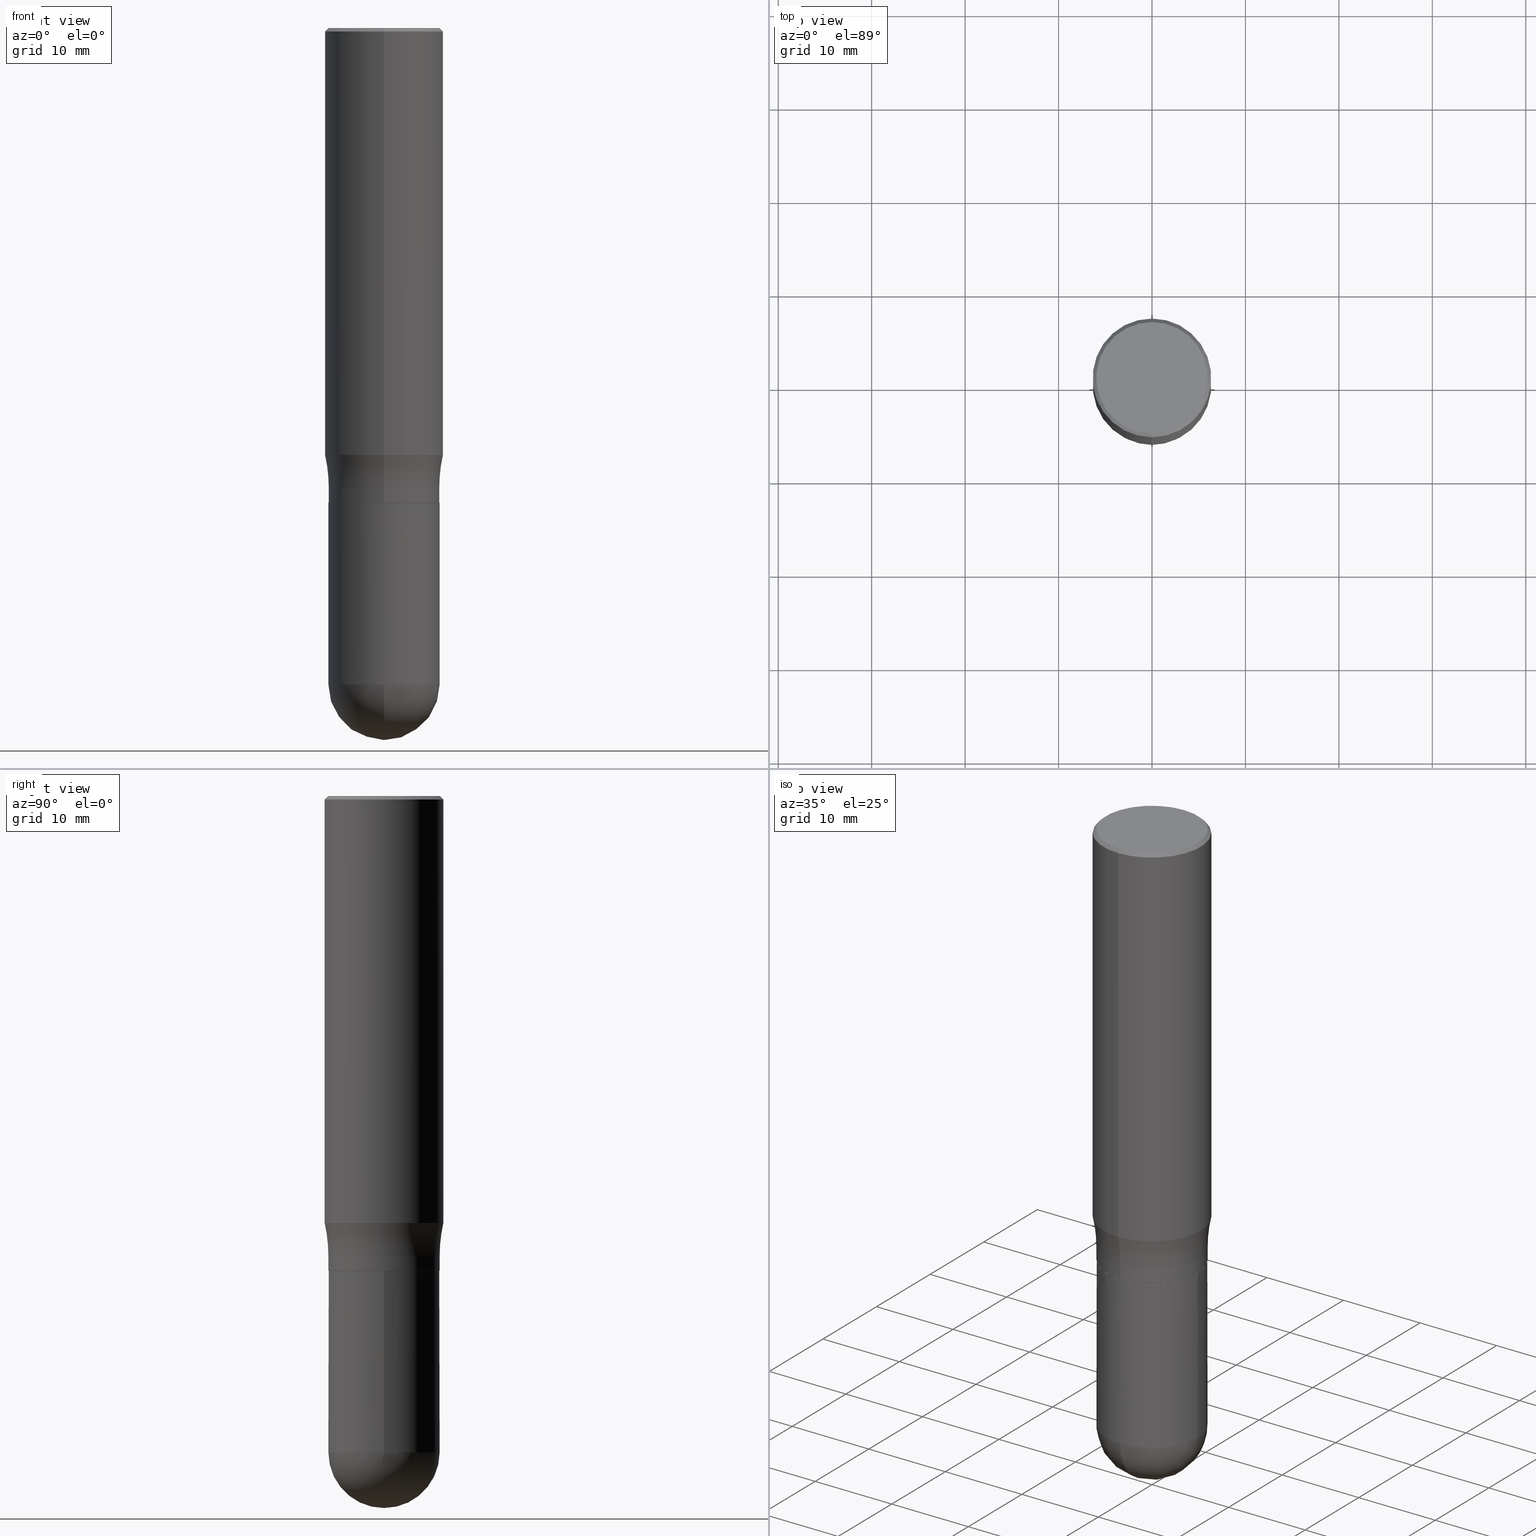
[diagram: canonical four-view strip — front | top / right | iso, engineering-drawing reading convention]
A machine part, canonical four-view strip (front | top / right | iso — engineering-drawing reading convention). The complete STEP part file that produces these views, byte-faithful:
ISO-10303-21;
HEADER;
FILE_DESCRIPTION (( 'STEP AP203' ),
    '1' );
FILE_NAME ('36542.STEP',
    '2024-03-01T12:58:55',
    ( '' ),
    ( '' ),
    'SwSTEP 2.0',
    'SolidWorks 2023',
    '' );
FILE_SCHEMA (( 'CONFIG_CONTROL_DESIGN' ));
ENDSEC;

DATA;
#1 = CARTESIAN_POINT ( 'NONE',  ( 1.640996229256272519E-15, 0.2349999999999999867, -8.360418196477502759E-16 ) ) ;
#2 = ORIENTED_EDGE ( 'NONE', *, *, #437, .F. ) ;
#3 = CIRCLE ( 'NONE', #300, 0.6250000000000001110 ) ;
#4 = PERSON_AND_ORGANIZATION ( #457, #157 ) ;
#5 = DATE_AND_TIME ( #351, #508 ) ;
#6 = LOCAL_TIME ( 7, 58, 55.00000000000000000, #410 ) ;
#7 = DIRECTION ( 'NONE',  ( -2.444769702225320447E-29, 3.492482495504128512E-15, 1.000000000000000000 ) ) ;
#8 = AXIS2_PLACEMENT_3D ( 'NONE', #151, #267, #24 ) ;
#9 = APPROVAL ( #449, 'UNSPECIFIED' ) ;
#10 = DIRECTION ( 'NONE',  ( 1.000000000000000000, -7.105427357601001070E-15, 4.926327769175085437E-29 ) ) ;
#11 = PERSON_AND_ORGANIZATION ( #457, #157 ) ;
#12 = AXIS2_PLACEMENT_3D ( 'NONE', #495, #224, #463 ) ;
#13 = CARTESIAN_POINT ( 'NONE',  ( 7.485118737272847550E-46, -1.069288699990853454E-31, -3.061686640856034159E-17 ) ) ;
#14 = ORIENTED_EDGE ( 'NONE', *, *, #393, .T. ) ;
#15 = PERSON_AND_ORGANIZATION ( #457, #157 ) ;
#16 = ORIENTED_EDGE ( 'NONE', *, *, #371, .T. ) ;
#17 = AXIS2_PLACEMENT_3D ( 'NONE', #490, #372, #484 ) ;
#18 = APPLICATION_PROTOCOL_DEFINITION ( 'international standard', 'config_control_design', 1994, #418 ) ;
#19 = VERTEX_POINT ( 'NONE', #179 ) ;
#20 = AXIS2_PLACEMENT_3D ( 'NONE', #334, #86, #59 ) ;
#21 = CIRCLE ( 'NONE', #277, 0.2349999999999999867 ) ;
#22 = APPROVAL ( #82, 'UNSPECIFIED' ) ;
#23 = CARTESIAN_POINT ( 'NONE',  ( 1.776356839400294641E-15, 0.2499999999999936717, -1.799231703909000002 ) ) ;
#24 = DIRECTION ( 'NONE',  ( -6.982962677686265922E-15, -1.000000000000000000, 3.503866601536036131E-15 ) ) ;
#25 = CARTESIAN_POINT ( 'NONE',  ( -1.633314970310768797E-15, -0.2339000000000070190, -1.999999999999999778 ) ) ;
#26 = VERTEX_POINT ( 'NONE', #169 ) ;
#27 = DIRECTION ( 'NONE',  ( 1.000000000000000000, -6.982962677686269077E-15, 0.000000000000000000 ) ) ;
#28 = CIRCLE ( 'NONE', #130, 0.6250000000000001110 ) ;
#29 = FACE_OUTER_BOUND ( 'NONE', #491, .T. ) ;
#30 = EDGE_CURVE ( 'NONE', #247, #322, #3, .T. ) ;
#31 = CC_DESIGN_SECURITY_CLASSIFICATION ( #344, ( #454 ) ) ;
#32 = DIRECTION ( 'NONE',  ( -2.444769702225320447E-29, 3.492482495504128512E-15, 1.000000000000000000 ) ) ;
#33 = ORIENTED_EDGE ( 'NONE', *, *, #265, .T. ) ;
#34 = FACE_OUTER_BOUND ( 'NONE', #319, .T. ) ;
#35 = ORIENTED_EDGE ( 'NONE', *, *, #58, .T. ) ;
#36 = CARTESIAN_POINT ( 'NONE',  ( 0.000000000000000000, 0.000000000000000000, 0.000000000000000000 ) ) ;
#37 = ORIENTED_EDGE ( 'NONE', *, *, #376, .F. ) ;
#38 = EDGE_CURVE ( 'NONE', #290, #60, #314, .T. ) ;
#39 = CIRCLE ( 'NONE', #8, 0.2339000000000000246 ) ;
#40 = CARTESIAN_POINT ( 'NONE',  ( 6.763188530385614545E-29, -9.656040790704603926E-15, -2.765600000000000058 ) ) ;
#41 = ORIENTED_EDGE ( 'NONE', *, *, #38, .F. ) ;
#42 = DIRECTION ( 'NONE',  ( 6.982962677686265922E-15, 1.000000000000000000, -2.330928322239131685E-15 ) ) ;
#43 = ORIENTED_EDGE ( 'NONE', *, *, #187, .T. ) ;
#44 = DIRECTION ( 'NONE',  ( -2.445468806185136877E-29, 3.491481338843145188E-15, 1.000000000000000000 ) ) ;
#45 = ORIENTED_EDGE ( 'NONE', *, *, #83, .T. ) ;
#46 = ADVANCED_FACE ( 'NONE', ( #241 ), #361, .T. ) ;
#47 = APPLICATION_CONTEXT ( 'configuration controlled 3d designs of mechanical parts and assemblies' ) ;
#48 = AXIS2_PLACEMENT_3D ( 'NONE', #13, #137, #52 ) ;
#49 = CARTESIAN_POINT ( 'NONE',  ( 0.000000000000000000, 0.000000000000000000, 0.000000000000000000 ) ) ;
#50 = ORIENTED_EDGE ( 'NONE', *, *, #336, .F. ) ;
#51 = CALENDAR_DATE ( 2024, 1, 3 ) ;
#52 = DIRECTION ( 'NONE',  ( -6.982962677686266711E-15, -1.000000000000000000, 3.492482495504128906E-15 ) ) ;
#53 = CARTESIAN_POINT ( 'NONE',  ( 3.667154553337987905E-31, -5.238723743256204132E-17, -0.01500000000000003067 ) ) ;
#54 = COORDINATED_UNIVERSAL_TIME_OFFSET ( 5, 0, .BEHIND. ) ;
#55 = ORIENTED_EDGE ( 'NONE', *, *, #496, .T. ) ;
#56 = DIRECTION ( 'NONE',  ( -6.982962677686265133E-15, -1.000000000000000000, 3.496392483358695161E-15 ) ) ;
#57 = COORDINATED_UNIVERSAL_TIME_OFFSET ( 5, 0, .BEHIND. ) ;
#58 = EDGE_CURVE ( 'NONE', #290, #406, #161, .T. ) ;
#59 = DIRECTION ( 'NONE',  ( 1.000000000000000000, 0.000000000000000000, 0.000000000000000000 ) ) ;
#60 = VERTEX_POINT ( 'NONE', #438 ) ;
#61 = CONICAL_SURFACE ( 'NONE', #453, 0.2500000000000000000, 0.7853981633974485010 ) ;
#62 = MANIFOLD_SOLID_BREP ( 'Body-Move/Copy2[2]', #231 ) ;
#63 =( NAMED_UNIT ( * ) SI_UNIT ( $, .STERADIAN. ) SOLID_ANGLE_UNIT ( ) );
#64 = ORIENTED_EDGE ( 'NONE', *, *, #298, .T. ) ;
#65 = VERTEX_POINT ( 'NONE', #365 ) ;
#66 = CC_DESIGN_PERSON_AND_ORGANIZATION_ASSIGNMENT ( #4, #135, ( #454 ) ) ;
#67 = CARTESIAN_POINT ( 'NONE',  ( 1.661959458942923419E-15, 0.2338999999999930302, -2.000000000000001332 ) ) ;
#68 = ORIENTED_EDGE ( 'NONE', *, *, #362, .F. ) ;
#69 = LOCAL_TIME ( 7, 58, 55.00000000000000000, #459 ) ;
#70 = CARTESIAN_POINT ( 'NONE',  ( 4.737963682912671420E-29, -6.768431076287002133E-15, -1.938000000000000167 ) ) ;
#71 = CARTESIAN_POINT ( 'NONE',  ( -1.636806451649615157E-15, -0.2344000000000069917, -1.937999999999999279 ) ) ;
#72 = CARTESIAN_POINT ( 'NONE',  ( 1.745740669421566875E-15, 0.2499999999999999167, -0.01500000000000090324 ) ) ;
#73 = CARTESIAN_POINT ( 'NONE',  ( 0.000000000000000000, 0.000000000000000000, 0.000000000000000000 ) ) ;
#74 = CARTESIAN_POINT ( 'NONE',  ( -1.633314970310768797E-15, -0.2339000000000070190, -1.999999999999999778 ) ) ;
#75 = EDGE_CURVE ( 'NONE', #355, #238, #441, .T. ) ;
#76 = DIRECTION ( 'NONE',  ( -6.982962677686265922E-15, -1.000000000000000000, 3.503866601536036131E-15 ) ) ;
#77 = CARTESIAN_POINT ( 'NONE',  ( 6.764522589796733920E-29, -9.654130341697934439E-15, -2.765600000000000058 ) ) ;
#78 = MANIFOLD_SOLID_BREP ( 'Body-Move/Copy2[1]', #88 ) ;
#79 = CIRCLE ( 'NONE', #398, 0.2339000000000000246 ) ;
#80 = CARTESIAN_POINT ( 'NONE',  ( -1.715124499442882299E-15, -0.2500000000000000555, -0.01499999999999915637 ) ) ;
#81 = ORIENTED_EDGE ( 'NONE', *, *, #75, .T. ) ;
#82 = APPROVAL_STATUS ( 'not_yet_approved' ) ;
#83 = EDGE_CURVE ( 'NONE', #255, #322, #485, .T. ) ;
#84 = CARTESIAN_POINT ( 'NONE',  ( 7.485118737272847550E-46, -1.069288699990853454E-31, -3.061686640856034159E-17 ) ) ;
#85 = ORIENTED_EDGE ( 'NONE', *, *, #376, .T. ) ;
#86 = DIRECTION ( 'NONE',  ( 0.000000000000000000, 0.000000000000000000, 1.000000000000000000 ) ) ;
#87 = ORIENTED_EDGE ( 'NONE', *, *, #30, .T. ) ;
#88 = CLOSED_SHELL ( 'NONE', ( #503, #353, #475, #46, #400 ) ) ;
#89 = CIRCLE ( 'NONE', #266, 0.2500000000000000000 ) ;
#90 = CIRCLE ( 'NONE', #186, 0.2344000000000000250 ) ;
#91 = CALENDAR_DATE ( 2024, 1, 3 ) ;
#92 = CC_DESIGN_APPROVAL ( #162, ( #454 ) ) ;
#93 = FACE_OUTER_BOUND ( 'NONE', #313, .T. ) ;
#94 = DIRECTION ( 'NONE',  ( 1.000000000000000000, -6.982962677686265922E-15, 4.883557194083112340E-29 ) ) ;
#95 = CIRCLE ( 'NONE', #331, 0.2500000000000000000 ) ;
#96 = CARTESIAN_POINT ( 'NONE',  ( 3.667154553337987905E-31, -5.238723743256204132E-17, -0.01500000000000003067 ) ) ;
#97 = CARTESIAN_POINT ( 'NONE',  ( -1.663670764459595899E-15, -0.2349999999999999867, 7.901165200349098005E-16 ) ) ;
#98 = EDGE_CURVE ( 'NONE', #65, #249, #28, .T. ) ;
#99 = CARTESIAN_POINT ( 'NONE',  ( 3.667154553337987905E-31, -5.238723743256204132E-17, -0.01500000000000003067 ) ) ;
#100 = EDGE_LOOP ( 'NONE', ( #499, #64, #14, #16, #472 ) ) ;
#101 = FACE_OUTER_BOUND ( 'NONE', #196, .T. ) ;
#102 = AXIS2_PLACEMENT_3D ( 'NONE', #487, #452, #147 ) ;
#103 = PRODUCT_DEFINITION ( 'UNKNOWN', '', #454, #150 ) ;
#104 = DIRECTION ( 'NONE',  ( 2.444769702225320447E-29, -3.492482495504128512E-15, -1.000000000000000000 ) ) ;
#105 = CARTESIAN_POINT ( 'NONE',  ( -1.715124499442882299E-15, -0.2500000000000000555, -0.01499999999999915637 ) ) ;
#106 = ORIENTED_EDGE ( 'NONE', *, *, #417, .T. ) ;
#107 = FACE_OUTER_BOUND ( 'NONE', #402, .T. ) ;
#108 = DIRECTION ( 'NONE',  ( -2.444769702225320447E-29, 3.492482495504128512E-15, 1.000000000000000000 ) ) ;
#109 = CALENDAR_DATE ( 2024, 1, 3 ) ;
#110 = ORIENTED_EDGE ( 'NONE', *, *, #38, .T. ) ;
#111 = APPROVAL_PERSON_ORGANIZATION ( #209, #9, #489 ) ;
#112 = CIRCLE ( 'NONE', #407, 0.2344000000000000250 ) ;
#113 = DIRECTION ( 'NONE',  ( -2.444769702225320447E-29, 3.492482495504128512E-15, 1.000000000000000000 ) ) ;
#114 = EDGE_CURVE ( 'NONE', #238, #355, #89, .T. ) ;
#115 = CARTESIAN_POINT ( 'NONE',  ( 0.000000000000000000, 0.000000000000000000, 0.000000000000000000 ) ) ;
#116 = ORIENTED_EDGE ( 'NONE', *, *, #250, .T. ) ;
#117 = AXIS2_PLACEMENT_3D ( 'NONE', #338, #189, #455 ) ;
#118 = DIRECTION ( 'NONE',  ( -2.444769702225320447E-29, 3.492482495504128512E-15, 1.000000000000000000 ) ) ;
#119 = VERTEX_POINT ( 'NONE', #142 ) ;
#120 = UNCERTAINTY_MEASURE_WITH_UNIT (LENGTH_MEASURE( 1.000000000000000082E-05 ), #141, 'distance_accuracy_value', 'NONE');
#121 = LOCAL_TIME ( 7, 58, 55.00000000000000000, #57 ) ;
#122 = AXIS2_PLACEMENT_3D ( 'NONE', #115, #379, #345 ) ;
#123 = FACE_OUTER_BOUND ( 'NONE', #124, .T. ) ;
#124 = EDGE_LOOP ( 'NONE', ( #436, #342, #391, #274 ) ) ;
#125 = CC_DESIGN_DATE_AND_TIME_ASSIGNMENT ( #5, #506, ( #344 ) ) ;
#126 = FACE_OUTER_BOUND ( 'NONE', #127, .T. ) ;
#127 = EDGE_LOOP ( 'NONE', ( #456, #33, #425, #387 ) ) ;
#128 = DIRECTION ( 'NONE',  ( -6.982962677686265922E-15, -1.000000000000000000, 3.492482495504128512E-15 ) ) ;
#129 = EDGE_LOOP ( 'NONE', ( #405, #37, #136, #477 ) ) ;
#130 = AXIS2_PLACEMENT_3D ( 'NONE', #214, #370, #330 ) ;
#131 = CC_DESIGN_PERSON_AND_ORGANIZATION_ASSIGNMENT ( #15, #367, ( #388 ) ) ;
#132 = TOROIDAL_SURFACE ( 'NONE', #102, 0.8594000000000002748, 0.6250000000000000000 ) ;
#133 = DIRECTION ( 'NONE',  ( -6.982962677686265922E-15, -1.000000000000000000, 3.503866601536036131E-15 ) ) ;
#134 = ORIENTED_EDGE ( 'NONE', *, *, #466, .F. ) ;
#135 = PERSON_AND_ORGANIZATION_ROLE ( 'creator' ) ;
#136 = ORIENTED_EDGE ( 'NONE', *, *, #98, .T. ) ;
#137 = DIRECTION ( 'NONE',  ( -2.444769702225320447E-29, 3.492482495504128512E-15, 1.000000000000000000 ) ) ;
#138 = DIRECTION ( 'NONE',  ( -1.000000000000000000, 7.105427357601001070E-15, -4.926315508542082329E-29 ) ) ;
#139 = PERSON_AND_ORGANIZATION_ROLE ( 'classification_officer' ) ;
#140 = AXIS2_PLACEMENT_3D ( 'NONE', #240, #195, #168 ) ;
#141 =( CONVERSION_BASED_UNIT ( 'INCH', #329 ) LENGTH_UNIT ( ) NAMED_UNIT ( #337 ) );
#142 = CARTESIAN_POINT ( 'NONE',  ( -0.2344000000000000250, -6.653989561573774307E-15, -2.765600000000000058 ) ) ;
#143 = TOROIDAL_SURFACE ( 'NONE', #429, 0.8594000000000002748, 0.6250000000000000000 ) ;
#144 = EDGE_CURVE ( 'NONE', #60, #119, #90, .T. ) ;
#145 = CARTESIAN_POINT ( 'NONE',  ( 4.737963682912671420E-29, -6.768431076287002133E-15, -1.938000000000000167 ) ) ;
#146 = APPROVAL_DATE_TIME ( #442, #22 ) ;
#147 = DIRECTION ( 'NONE',  ( -6.982962677686265922E-15, -1.000000000000000000, 3.492482495504128512E-15 ) ) ;
#148 = ADVANCED_FACE ( 'NONE', ( #107 ), #384, .T. ) ;
#149 = VECTOR ( 'NONE', #152, 39.37007874015748854 ) ;
#150 = DESIGN_CONTEXT ( 'detailed design', #418, 'design' ) ;
#151 = CARTESIAN_POINT ( 'NONE',  ( 4.889539404450642015E-29, -6.984964991008259390E-15, -2.000000000000000444 ) ) ;
#152 = DIRECTION ( 'NONE',  ( -4.937700262164715281E-15, -0.7071067811865691111, 0.7071067811865257013 ) ) ;
#153 = ORIENTED_EDGE ( 'NONE', *, *, #98, .F. ) ;
#154 = DIRECTION ( 'NONE',  ( -6.982962677686265922E-15, -1.000000000000000000, 3.278217592397115862E-15 ) ) ;
#155 = ORIENTED_EDGE ( 'NONE', *, *, #265, .F. ) ;
#156 = EDGE_CURVE ( 'NONE', #352, #349, #335, .T. ) ;
#157 = ORGANIZATION ( 'UNSPECIFIED', 'UNSPECIFIED', '' ) ;
#158 = DIRECTION ( 'NONE',  ( 6.982962677686265922E-15, 1.000000000000000000, -3.491643216902136408E-15 ) ) ;
#159 = EDGE_LOOP ( 'NONE', ( #85, #326, #262, #203 ) ) ;
#160 = CARTESIAN_POINT ( 'NONE',  ( 1.720934506011009380E-15, 0.2343999999999935024, -1.938000000000001055 ) ) ;
#161 = CIRCLE ( 'NONE', #497, 0.2344000000000000528 ) ;
#162 = APPROVAL ( #245, 'UNSPECIFIED' ) ;
#163 = DIRECTION ( 'NONE',  ( -2.445468806185136597E-29, 3.491481338843145583E-15, 1.000000000000000000 ) ) ;
#164 = APPROVAL_ROLE ( '' ) ;
#165 = AXIS2_PLACEMENT_3D ( 'NONE', #36, #163, #286 ) ;
#166 = AXIS2_PLACEMENT_3D ( 'NONE', #200, #207, #512 ) ;
#167 = DIRECTION ( 'NONE',  ( -4.851104656540965064E-15, -0.7071067811865501263, -0.7071067811865449082 ) ) ;
#168 = DIRECTION ( 'NONE',  ( 1.000000000000000000, -6.982962677686269077E-15, 0.000000000000000000 ) ) ;
#169 = CARTESIAN_POINT ( 'NONE',  ( -1.636806451649613579E-15, -0.2344000000000072137, -1.999499999999999611 ) ) ;
#170 = CARTESIAN_POINT ( 'NONE',  ( 1.663735815782324262E-15, 0.2338999999999930302, -2.000000000000001332 ) ) ;
#171 = DIRECTION ( 'NONE',  ( -1.000000000000000000, 6.982962677686265922E-15, -4.883557194083112901E-29 ) ) ;
#172 = AXIS2_PLACEMENT_3D ( 'NONE', #289, #220, #297 ) ;
#173 = DIRECTION ( 'NONE',  ( -6.982962677686265922E-15, -1.000000000000000000, 3.491643216902136408E-15 ) ) ;
#174 = DATE_AND_TIME ( #91, #316 ) ;
#175 = ORIENTED_EDGE ( 'NONE', *, *, #144, .T. ) ;
#176 = PERSON_AND_ORGANIZATION_ROLE ( 'design_supplier' ) ;
#177 = ADVANCED_FACE ( 'NONE', ( #419 ), #275, .T. ) ;
#178 =( LENGTH_UNIT ( ) NAMED_UNIT ( * ) SI_UNIT ( $, .METRE. ) );
#179 = CARTESIAN_POINT ( 'NONE',  ( 0.2344000000000000250, -9.956308185845112006E-15, -2.765600000000000058 ) ) ;
#180 = CIRCLE ( 'NONE', #269, 0.2500000000000000000 ) ;
#181 = ORIENTED_EDGE ( 'NONE', *, *, #347, .T. ) ;
#182 = PERSON_AND_ORGANIZATION ( #457, #157 ) ;
#183 = EDGE_CURVE ( 'NONE', #340, #432, #39, .T. ) ;
#184 = AXIS2_PLACEMENT_3D ( 'NONE', #40, #392, #394 ) ;
#185 = CYLINDRICAL_SURFACE ( 'NONE', #122, 0.2500000000000000000 ) ;
#186 = AXIS2_PLACEMENT_3D ( 'NONE', #413, #296, #27 ) ;
#187 = EDGE_CURVE ( 'NONE', #247, #65, #180, .T. ) ;
#188 = CARTESIAN_POINT ( 'NONE',  ( 1.665512172621724317E-15, 0.2343999999999932804, -1.999500000000001165 ) ) ;
#189 = DIRECTION ( 'NONE',  ( -2.444769702225320447E-29, 3.492482495504128512E-15, 1.000000000000000000 ) ) ;
#190 = CYLINDRICAL_SURFACE ( 'NONE', #210, 0.2344000000000002470 ) ;
#191 = APPROVAL_PERSON_ORGANIZATION ( #233, #22, #164 ) ;
#192 = ADVANCED_BREP_SHAPE_REPRESENTATION ( '36542', ( #78, #62, #20 ), #374 ) ;
#193 = ORIENTED_EDGE ( 'NONE', *, *, #114, .T. ) ;
#194 = EDGE_CURVE ( 'NONE', #249, #322, #226, .T. ) ;
#195 = DIRECTION ( 'NONE',  ( -2.445468806185136597E-29, 3.491481338843145583E-15, 1.000000000000000000 ) ) ;
#196 = EDGE_LOOP ( 'NONE', ( #305, #106, #193, #311 ) ) ;
#197 = DIRECTION ( 'NONE',  ( -2.444769702225320447E-29, 3.492482495504128512E-15, 1.000000000000000000 ) ) ;
#198 = ORIENTED_EDGE ( 'NONE', *, *, #393, .F. ) ;
#199 = VECTOR ( 'NONE', #44, 39.37007874015748143 ) ;
#200 = CARTESIAN_POINT ( 'NONE',  ( 4.888317019599528558E-29, -6.983218749760505903E-15, -1.999500000000000277 ) ) ;
#201 = ORIENTED_EDGE ( 'NONE', *, *, #194, .F. ) ;
#202 = DIRECTION ( 'NONE',  ( -6.982962677686265922E-15, -1.000000000000000000, 3.278217592397115862E-15 ) ) ;
#203 = ORIENTED_EDGE ( 'NONE', *, *, #496, .F. ) ;
#204 = CC_DESIGN_PERSON_AND_ORGANIZATION_ASSIGNMENT ( #251, #291, ( #103 ) ) ;
#205 = APPROVAL_DATE_TIME ( #403, #162 ) ;
#206 = AXIS2_PLACEMENT_3D ( 'NONE', #440, #94, #480 ) ;
#207 = DIRECTION ( 'NONE',  ( -2.444769702225320447E-29, 3.492482495504128512E-15, 1.000000000000000000 ) ) ;
#208 = CARTESIAN_POINT ( 'NONE',  ( 6.106404271122349493E-15, 0.8593999999999933914, -1.938000000000003276 ) ) ;
#209 = PERSON_AND_ORGANIZATION ( #457, #157 ) ;
#210 = AXIS2_PLACEMENT_3D ( 'NONE', #501, #32, #348 ) ;
#211 = ORIENTED_EDGE ( 'NONE', *, *, #437, .T. ) ;
#212 = EDGE_CURVE ( 'NONE', #26, #249, #458, .T. ) ;
#213 = DIRECTION ( 'NONE',  ( -2.445468806185136597E-29, 3.491481338843145583E-15, 1.000000000000000000 ) ) ;
#214 = CARTESIAN_POINT ( 'NONE',  ( -6.001158125203531062E-15, -0.8594000000000070472, -1.937999999999997280 ) ) ;
#215 =( NAMED_UNIT ( * ) PLANE_ANGLE_UNIT ( ) SI_UNIT ( $, .RADIAN. ) );
#216 = ORIENTED_EDGE ( 'NONE', *, *, #183, .F. ) ;
#217 = FACE_OUTER_BOUND ( 'NONE', #222, .T. ) ;
#218 = SHAPE_DEFINITION_REPRESENTATION ( #427, #192 ) ;
#219 = CIRCLE ( 'NONE', #48, 0.2349999999999999867 ) ;
#220 = DIRECTION ( 'NONE',  ( -2.445468806185136597E-29, 3.491481338843145583E-15, 1.000000000000000000 ) ) ;
#221 = CC_DESIGN_PERSON_AND_ORGANIZATION_ASSIGNMENT ( #11, #176, ( #454 ) ) ;
#222 = EDGE_LOOP ( 'NONE', ( #50, #43, #55, #230 ) ) ;
#223 = AXIS2_PLACEMENT_3D ( 'NONE', #53, #7, #173 ) ;
#224 = DIRECTION ( 'NONE',  ( -2.445468806185136597E-29, 3.491481338843145583E-15, 1.000000000000000000 ) ) ;
#225 = EDGE_LOOP ( 'NONE', ( #181, #474 ) ) ;
#226 = CIRCLE ( 'NONE', #468, 0.2344000000000002470 ) ;
#227 = EDGE_CURVE ( 'NONE', #234, #355, #268, .T. ) ;
#228 = DIRECTION ( 'NONE',  ( 4.937700262164548831E-15, 0.7071067811865452413, -0.7071067811865497932 ) ) ;
#229 = CARTESIAN_POINT ( 'NONE',  ( 7.347763026875712115E-29, -1.045818070703676051E-14, -3.000000000000000444 ) ) ;
#230 = ORIENTED_EDGE ( 'NONE', *, *, #75, .F. ) ;
#231 = CLOSED_SHELL ( 'NONE', ( #235, #514, #423, #320, #288, #460, #333, #148, #325, #411, #177, #242 ) ) ;
#232 = DIRECTION ( 'NONE',  ( -6.982962677686265922E-15, -1.000000000000000000, 3.492482495504128512E-15 ) ) ;
#233 = PERSON_AND_ORGANIZATION ( #457, #157 ) ;
#234 = VERTEX_POINT ( 'NONE', #424 ) ;
#235 = ADVANCED_FACE ( 'NONE', ( #382 ), #185, .T. ) ;
#236 = VECTOR ( 'NONE', #167, 39.37007874015748143 ) ;
#237 = LINE ( 'NONE', #431, #399 ) ;
#238 = VERTEX_POINT ( 'NONE', #105 ) ;
#239 = DIRECTION ( 'NONE',  ( -2.444769702225320447E-29, 3.492482495504128512E-15, 1.000000000000000000 ) ) ;
#240 = CARTESIAN_POINT ( 'NONE',  ( 6.763188530385614545E-29, -9.656040790704603926E-15, -2.765600000000000058 ) ) ;
#241 = FACE_OUTER_BOUND ( 'NONE', #346, .T. ) ;
#242 = ADVANCED_FACE ( 'NONE', ( #217 ), #420, .T. ) ;
#243 = DIRECTION ( 'NONE',  ( -2.444769702225320167E-29, 3.492482495504128512E-15, 1.000000000000000000 ) ) ;
#244 = EDGE_LOOP ( 'NONE', ( #271, #383 ) ) ;
#245 = APPROVAL_STATUS ( 'not_yet_approved' ) ;
#246 = LINE ( 'NONE', #471, #199 ) ;
#247 = VERTEX_POINT ( 'NONE', #23 ) ;
#248 = APPLICATION_PROTOCOL_DEFINITION ( 'international standard', 'config_control_design', 1994, #47 ) ;
#249 = VERTEX_POINT ( 'NONE', #71 ) ;
#250 = EDGE_CURVE ( 'NONE', #340, #26, #310, .T. ) ;
#251 = PERSON_AND_ORGANIZATION ( #457, #157 ) ;
#252 = CIRCLE ( 'NONE', #140, 0.2344000000000000250 ) ;
#253 = AXIS2_PLACEMENT_3D ( 'NONE', #73, #118, #504 ) ;
#254 = LINE ( 'NONE', #439, #500 ) ;
#255 = VERTEX_POINT ( 'NONE', #188 ) ;
#256 = APPROVAL_ROLE ( '' ) ;
#257 = MECHANICAL_CONTEXT ( 'NONE', #47, 'mechanical' ) ;
#258 = DIRECTION ( 'NONE',  ( -6.982962677686265922E-15, -1.000000000000000000, 3.491643216902136408E-15 ) ) ;
#259 = CARTESIAN_POINT ( 'NONE',  ( 4.888317019599528558E-29, -6.983218749760505903E-15, -1.999500000000000277 ) ) ;
#260 = COORDINATED_UNIVERSAL_TIME_OFFSET ( 5, 0, .BEHIND. ) ;
#261 = DIRECTION ( 'NONE',  ( 2.444769702225320447E-29, -3.492482495504128512E-15, -1.000000000000000000 ) ) ;
#262 = ORIENTED_EDGE ( 'NONE', *, *, #114, .F. ) ;
#263 = CARTESIAN_POINT ( 'NONE',  ( -1.636806451649662291E-15, -0.2344000000000002470, 8.186378969461685757E-16 ) ) ;
#264 = ORIENTED_EDGE ( 'NONE', *, *, #227, .T. ) ;
#265 = EDGE_CURVE ( 'NONE', #432, #255, #390, .T. ) ;
#266 = AXIS2_PLACEMENT_3D ( 'NONE', #96, #448, #258 ) ;
#267 = DIRECTION ( 'NONE',  ( -2.444769702225320447E-29, 3.492482495504128512E-15, 1.000000000000000000 ) ) ;
#268 = LINE ( 'NONE', #72, #357 ) ;
#269 = AXIS2_PLACEMENT_3D ( 'NONE', #309, #272, #154 ) ;
#270 = CARTESIAN_POINT ( 'NONE',  ( 0.000000000000000000, 0.000000000000000000, 0.000000000000000000 ) ) ;
#271 = ORIENTED_EDGE ( 'NONE', *, *, #466, .T. ) ;
#272 = DIRECTION ( 'NONE',  ( -2.444769702225320447E-29, 3.492482495504128512E-15, 1.000000000000000000 ) ) ;
#273 = FACE_OUTER_BOUND ( 'NONE', #513, .T. ) ;
#274 = ORIENTED_EDGE ( 'NONE', *, *, #481, .F. ) ;
#275 = CONICAL_SURFACE ( 'NONE', #486, 0.2500000000000000000, 0.7853981633974485010 ) ;
#276 = FACE_OUTER_BOUND ( 'NONE', #284, .T. ) ;
#277 = AXIS2_PLACEMENT_3D ( 'NONE', #84, #197, #473 ) ;
#278 = PLANE ( 'NONE',  #301 ) ;
#279 = ORIENTED_EDGE ( 'NONE', *, *, #187, .F. ) ;
#280 = CARTESIAN_POINT ( 'NONE',  ( 4.889539404450642015E-29, -6.984964991008259390E-15, -2.000000000000000444 ) ) ;
#281 = VERTEX_POINT ( 'NONE', #97 ) ;
#282 = EDGE_CURVE ( 'NONE', #26, #255, #295, .T. ) ;
#283 = CARTESIAN_POINT ( 'NONE',  ( 4.398707156999959625E-29, -6.283785231258246916E-15, -1.799231703908999114 ) ) ;
#284 = EDGE_LOOP ( 'NONE', ( #216, #2 ) ) ;
#285 = AXIS2_PLACEMENT_3D ( 'NONE', #145, #364, #482 ) ;
#286 = DIRECTION ( 'NONE',  ( 1.000000000000000000, -6.982962677686266711E-15, 4.876176775795936353E-29 ) ) ;
#287 = DIRECTION ( 'NONE',  ( 6.982962677686265922E-15, 1.000000000000000000, -2.330928322239131685E-15 ) ) ;
#288 = ADVANCED_FACE ( 'NONE', ( #273 ), #143, .F. ) ;
#289 = CARTESIAN_POINT ( 'NONE',  ( 4.890937612370273754E-29, -6.982962677686291954E-15, -2.000000000000000444 ) ) ;
#290 = VERTEX_POINT ( 'NONE', #229 ) ;
#291 = PERSON_AND_ORGANIZATION_ROLE ( 'creator' ) ;
#292 = CARTESIAN_POINT ( 'NONE',  ( -0.2344000000000000250, 1.665512172621675013E-15, -1.152998385155750104E-29 ) ) ;
#293 = ORIENTED_EDGE ( 'NONE', *, *, #282, .T. ) ;
#294 = CC_DESIGN_APPROVAL ( #22, ( #344 ) ) ;
#295 = CIRCLE ( 'NONE', #509, 0.2344000000000002470 ) ;
#296 = DIRECTION ( 'NONE',  ( -2.445468806185136597E-29, 3.491481338843145583E-15, 1.000000000000000000 ) ) ;
#297 = DIRECTION ( 'NONE',  ( 1.000000000000000000, -6.982962677686269077E-15, 0.000000000000000000 ) ) ;
#298 = EDGE_CURVE ( 'NONE', #119, #406, #112, .T. ) ;
#299 = LINE ( 'NONE', #292, #306 ) ;
#300 = AXIS2_PLACEMENT_3D ( 'NONE', #208, #10, #368 ) ;
#301 = AXIS2_PLACEMENT_3D ( 'NONE', #404, #243, #128 ) ;
#302 = ORIENTED_EDGE ( 'NONE', *, *, #488, .T. ) ;
#303 = CC_DESIGN_PERSON_AND_ORGANIZATION_ASSIGNMENT ( #363, #139, ( #344 ) ) ;
#304 = DIRECTION ( 'NONE',  ( 5.024295867788231995E-15, 0.7071067811865739960, 0.7071067811865208164 ) ) ;
#305 = ORIENTED_EDGE ( 'NONE', *, *, #451, .F. ) ;
#306 = VECTOR ( 'NONE', #450, 39.37007874015748143 ) ;
#307 = DIRECTION ( 'NONE',  ( -2.445468806185136597E-29, 3.491481338843145583E-15, 1.000000000000000000 ) ) ;
#308 = CC_DESIGN_DATE_AND_TIME_ASSIGNMENT ( #447, #479, ( #103 ) ) ;
#309 = CARTESIAN_POINT ( 'NONE',  ( 4.398707156999959625E-29, -6.283785231258246916E-15, -1.799231703908999114 ) ) ;
#310 = LINE ( 'NONE', #25, #149 ) ;
#311 = ORIENTED_EDGE ( 'NONE', *, *, #227, .F. ) ;
#312 = SPHERICAL_SURFACE ( 'NONE', #421, 0.2344000000000000528 ) ;
#313 = EDGE_LOOP ( 'NONE', ( #175, #302, #134, #502, #470 ) ) ;
#314 = CIRCLE ( 'NONE', #206, 0.2344000000000000528 ) ;
#315 = CYLINDRICAL_SURFACE ( 'NONE', #165, 0.2344000000000000250 ) ;
#316 = LOCAL_TIME ( 7, 58, 55.00000000000000000, #260 ) ;
#317 = CIRCLE ( 'NONE', #184, 0.2344000000000000250 ) ;
#318 = DIRECTION ( 'NONE',  ( -2.444769702225320447E-29, 3.492482495504128512E-15, 1.000000000000000000 ) ) ;
#319 = EDGE_LOOP ( 'NONE', ( #41, #35, #422, #507 ) ) ;
#320 = ADVANCED_FACE ( 'NONE', ( #29 ), #190, .T. ) ;
#321 = DIRECTION ( 'NONE',  ( 6.982962677686265922E-15, 1.000000000000000000, -3.492482495504128512E-15 ) ) ;
#322 = VERTEX_POINT ( 'NONE', #160 ) ;
#323 = CARTESIAN_POINT ( 'NONE',  ( 6.764522589796733920E-29, -9.654130341697934439E-15, -2.765600000000000058 ) ) ;
#324 = ORIENTED_EDGE ( 'NONE', *, *, #347, .F. ) ;
#325 = ADVANCED_FACE ( 'NONE', ( #276 ), #278, .F. ) ;
#326 = ORIENTED_EDGE ( 'NONE', *, *, #336, .T. ) ;
#327 = PLANE ( 'NONE',  #17 ) ;
#328 = ORIENTED_EDGE ( 'NONE', *, *, #385, .F. ) ;
#329 = LENGTH_MEASURE_WITH_UNIT ( LENGTH_MEASURE( 0.02539999999999999897 ), #178 );
#330 = DIRECTION ( 'NONE',  ( -6.982962677686264344E-15, -1.000000000000000000, 0.000000000000000000 ) ) ;
#331 = AXIS2_PLACEMENT_3D ( 'NONE', #283, #318, #202 ) ;
#332 = FACE_OUTER_BOUND ( 'NONE', #129, .T. ) ;
#333 = ADVANCED_FACE ( 'NONE', ( #123 ), #350, .T. ) ;
#334 = CARTESIAN_POINT ( 'NONE',  ( 0.000000000000000000, 0.000000000000000000, 0.000000000000000000 ) ) ;
#335 = CIRCLE ( 'NONE', #12, 0.2344000000000000250 ) ;
#336 = EDGE_CURVE ( 'NONE', #247, #355, #237, .T. ) ;
#337 = DIMENSIONAL_EXPONENTS ( 1.000000000000000000, 0.000000000000000000, 0.000000000000000000, 0.000000000000000000, 0.000000000000000000, 0.000000000000000000, 0.000000000000000000 ) ;
#338 = CARTESIAN_POINT ( 'NONE',  ( 4.889539404450642015E-29, -6.984964991008259390E-15, -2.000000000000000444 ) ) ;
#339 = CARTESIAN_POINT ( 'NONE',  ( 6.763188530385614545E-29, -9.656040790704603926E-15, -2.765600000000000058 ) ) ;
#340 = VERTEX_POINT ( 'NONE', #74 ) ;
#341 = DIRECTION ( 'NONE',  ( -2.444769702225320447E-29, 3.492482495504128512E-15, 1.000000000000000000 ) ) ;
#342 = ORIENTED_EDGE ( 'NONE', *, *, #385, .T. ) ;
#343 = CARTESIAN_POINT ( 'NONE',  ( 3.667154553337987905E-31, -5.238723743256204132E-17, -0.01500000000000003067 ) ) ;
#344 = SECURITY_CLASSIFICATION ( '', '', #483 ) ;
#345 = DIRECTION ( 'NONE',  ( -6.982962677686265922E-15, -1.000000000000000000, 3.492482495504128512E-15 ) ) ;
#346 = EDGE_LOOP ( 'NONE', ( #395, #110, #68, #198 ) ) ;
#347 = EDGE_CURVE ( 'NONE', #234, #281, #21, .T. ) ;
#348 = DIRECTION ( 'NONE',  ( -6.982962677686265133E-15, -1.000000000000000000, 3.492482495504128512E-15 ) ) ;
#349 = VERTEX_POINT ( 'NONE', #469 ) ;
#350 = CYLINDRICAL_SURFACE ( 'NONE', #253, 0.2344000000000002470 ) ;
#351 = CALENDAR_DATE ( 2024, 1, 3 ) ;
#352 = VERTEX_POINT ( 'NONE', #430 ) ;
#353 = ADVANCED_FACE ( 'NONE', ( #34 ), #312, .T. ) ;
#354 = PLANE ( 'NONE',  #389 ) ;
#355 = VERTEX_POINT ( 'NONE', #433 ) ;
#356 = CIRCLE ( 'NONE', #285, 0.2344000000000002470 ) ;
#357 = VECTOR ( 'NONE', #228, 39.37007874015748143 ) ;
#358 = LINE ( 'NONE', #80, #236 ) ;
#359 = DIRECTION ( 'NONE',  ( -2.444769702225320447E-29, 3.492482495504128512E-15, 1.000000000000000000 ) ) ;
#360 = FACE_OUTER_BOUND ( 'NONE', #225, .T. ) ;
#361 = SPHERICAL_SURFACE ( 'NONE', #377, 0.2344000000000000528 ) ;
#362 = EDGE_CURVE ( 'NONE', #19, #60, #317, .T. ) ;
#363 = PERSON_AND_ORGANIZATION ( #457, #157 ) ;
#364 = DIRECTION ( 'NONE',  ( -2.444769702225320447E-29, 3.492482495504128512E-15, 1.000000000000000000 ) ) ;
#365 = CARTESIAN_POINT ( 'NONE',  ( -1.745740669421522107E-15, -0.2500000000000062728, -1.799231703908998448 ) ) ;
#366 = VECTOR ( 'NONE', #108, 39.37007874015748143 ) ;
#367 = PERSON_AND_ORGANIZATION_ROLE ( 'design_owner' ) ;
#368 = DIRECTION ( 'NONE',  ( 7.105427357600999492E-15, 1.000000000000000000, 0.000000000000000000 ) ) ;
#369 = DIRECTION ( 'NONE',  ( 6.982962677686265922E-15, 1.000000000000000000, -3.491643216902136408E-15 ) ) ;
#370 = DIRECTION ( 'NONE',  ( -1.000000000000000000, 6.982962677686265922E-15, -4.883557194083112340E-29 ) ) ;
#371 = EDGE_CURVE ( 'NONE', #19, #349, #246, .T. ) ;
#372 = DIRECTION ( 'NONE',  ( 2.438088387897960049E-29, -3.491481338843145188E-15, -1.000000000000000000 ) ) ;
#373 = CALENDAR_DATE ( 2024, 1, 3 ) ;
#374 =( GEOMETRIC_REPRESENTATION_CONTEXT ( 3 ) GLOBAL_UNCERTAINTY_ASSIGNED_CONTEXT ( ( #120 ) ) GLOBAL_UNIT_ASSIGNED_CONTEXT ( ( #141, #215, #63 ) ) REPRESENTATION_CONTEXT ( 'NONE', 'WORKASPACE' ) );
#375 = ORIENTED_EDGE ( 'NONE', *, *, #212, .F. ) ;
#376 = EDGE_CURVE ( 'NONE', #65, #247, #95, .T. ) ;
#377 = AXIS2_PLACEMENT_3D ( 'NONE', #444, #171, #287 ) ;
#378 = VECTOR ( 'NONE', #359, 39.37007874015748143 ) ;
#379 = DIRECTION ( 'NONE',  ( -2.444769702225320447E-29, 3.492482495504128512E-15, 1.000000000000000000 ) ) ;
#380 = CONICAL_SURFACE ( 'NONE', #492, 0.2339000000000000246, 0.7853981633974824739 ) ;
#381 = CIRCLE ( 'NONE', #166, 0.2344000000000002470 ) ;
#382 = FACE_OUTER_BOUND ( 'NONE', #159, .T. ) ;
#383 = ORIENTED_EDGE ( 'NONE', *, *, #156, .T. ) ;
#384 = CONICAL_SURFACE ( 'NONE', #117, 0.2339000000000000246, 0.7853981633974824739 ) ;
#385 = EDGE_CURVE ( 'NONE', #255, #26, #381, .T. ) ;
#386 = DIRECTION ( 'NONE',  ( 1.000000000000000000, -6.982962677686269077E-15, 0.000000000000000000 ) ) ;
#387 = ORIENTED_EDGE ( 'NONE', *, *, #250, .F. ) ;
#388 = PRODUCT ( '36542', '36542', '', ( #257 ) ) ;
#389 = AXIS2_PLACEMENT_3D ( 'NONE', #1, #510, #321 ) ;
#390 = LINE ( 'NONE', #67, #446 ) ;
#391 = ORIENTED_EDGE ( 'NONE', *, *, #212, .T. ) ;
#392 = DIRECTION ( 'NONE',  ( -2.445468806185136597E-29, 3.491481338843145583E-15, 1.000000000000000000 ) ) ;
#393 = EDGE_CURVE ( 'NONE', #406, #19, #252, .T. ) ;
#394 = DIRECTION ( 'NONE',  ( 1.000000000000000000, -6.982962677686269077E-15, 0.000000000000000000 ) ) ;
#395 = ORIENTED_EDGE ( 'NONE', *, *, #58, .F. ) ;
#396 = CARTESIAN_POINT ( 'NONE',  ( 4.889539404450642015E-29, -6.984964991008259390E-15, -2.000000000000000444 ) ) ;
#397 = CARTESIAN_POINT ( 'NONE',  ( 1.665512172621676197E-15, 0.2344000000000002470, -8.186378969461685757E-16 ) ) ;
#398 = AXIS2_PLACEMENT_3D ( 'NONE', #396, #476, #133 ) ;
#399 = VECTOR ( 'NONE', #239, 39.37007874015748143 ) ;
#400 = ADVANCED_FACE ( 'NONE', ( #505 ), #315, .T. ) ;
#401 = DIRECTION ( 'NONE',  ( -2.444769702225320447E-29, 3.492482495504128512E-15, 1.000000000000000000 ) ) ;
#402 = EDGE_LOOP ( 'NONE', ( #155, #211, #116, #328 ) ) ;
#403 = DATE_AND_TIME ( #51, #6 ) ;
#404 = CARTESIAN_POINT ( 'NONE',  ( 4.889539404450642015E-29, -6.984964991008259390E-15, -2.000000000000000444 ) ) ;
#405 = ORIENTED_EDGE ( 'NONE', *, *, #30, .F. ) ;
#406 = VERTEX_POINT ( 'NONE', #435 ) ;
#407 = AXIS2_PLACEMENT_3D ( 'NONE', #339, #307, #386 ) ;
#408 = CYLINDRICAL_SURFACE ( 'NONE', #428, 0.2344000000000000250 ) ;
#409 = DIRECTION ( 'NONE',  ( -7.105427357601001070E-15, -1.000000000000000000, 0.000000000000000000 ) ) ;
#410 = COORDINATED_UNIVERSAL_TIME_OFFSET ( 5, 0, .BEHIND. ) ;
#411 = ADVANCED_FACE ( 'NONE', ( #360 ), #354, .F. ) ;
#412 = DIRECTION ( 'NONE',  ( 1.000000000000000000, -6.982962677686266711E-15, 4.876176775795936353E-29 ) ) ;
#413 = CARTESIAN_POINT ( 'NONE',  ( 6.763188530385614545E-29, -9.656040790704603926E-15, -2.765600000000000058 ) ) ;
#414 = APPROVAL_DATE_TIME ( #174, #9 ) ;
#415 = FACE_OUTER_BOUND ( 'NONE', #244, .T. ) ;
#416 = CC_DESIGN_APPROVAL ( #9, ( #103 ) ) ;
#417 = EDGE_CURVE ( 'NONE', #281, #238, #358, .T. ) ;
#418 = APPLICATION_CONTEXT ( 'configuration controlled 3d designs of mechanical parts and assemblies' ) ;
#419 = FACE_OUTER_BOUND ( 'NONE', #434, .T. ) ;
#420 = CYLINDRICAL_SURFACE ( 'NONE', #493, 0.2500000000000000000 ) ;
#421 = AXIS2_PLACEMENT_3D ( 'NONE', #323, #467, #42 ) ;
#422 = ORIENTED_EDGE ( 'NONE', *, *, #298, .F. ) ;
#423 = ADVANCED_FACE ( 'NONE', ( #126 ), #380, .T. ) ;
#424 = CARTESIAN_POINT ( 'NONE',  ( 1.693368449338919598E-15, 0.2349999999999999867, -8.513502528520306316E-16 ) ) ;
#425 = ORIENTED_EDGE ( 'NONE', *, *, #282, .F. ) ;
#426 = CARTESIAN_POINT ( 'NONE',  ( 4.739318546386795518E-29, -6.766490834678016834E-15, -1.938000000000000167 ) ) ;
#427 = PRODUCT_DEFINITION_SHAPE ( 'NONE', 'NONE',  #103 ) ;
#428 = AXIS2_PLACEMENT_3D ( 'NONE', #49, #213, #412 ) ;
#429 = AXIS2_PLACEMENT_3D ( 'NONE', #426, #341, #498 ) ;
#430 = CARTESIAN_POINT ( 'NONE',  ( -0.2344000000000000250, -6.653989561573772729E-15, -2.000000000000000444 ) ) ;
#431 = CARTESIAN_POINT ( 'NONE',  ( 1.776356839400250267E-15, 0.2500000000000000000, -8.731206238760321279E-16 ) ) ;
#432 = VERTEX_POINT ( 'NONE', #170 ) ;
#433 = CARTESIAN_POINT ( 'NONE',  ( 1.745740669421566875E-15, 0.2499999999999999167, -0.01500000000000090324 ) ) ;
#434 = EDGE_LOOP ( 'NONE', ( #511, #324, #264, #81 ) ) ;
#435 = CARTESIAN_POINT ( 'NONE',  ( -1.665512172621607171E-15, -0.2344000000000097395, -2.765599999999999614 ) ) ;
#436 = ORIENTED_EDGE ( 'NONE', *, *, #83, .F. ) ;
#437 = EDGE_CURVE ( 'NONE', #432, #340, #79, .T. ) ;
#438 = CARTESIAN_POINT ( 'NONE',  ( 1.636806451649728555E-15, 0.2343999999999903938, -2.765600000000000502 ) ) ;
#439 = CARTESIAN_POINT ( 'NONE',  ( -1.745740669421566480E-15, -0.2500000000000000000, 8.731206238760321279E-16 ) ) ;
#440 = CARTESIAN_POINT ( 'NONE',  ( 6.764522589796733920E-29, -9.654130341697934439E-15, -2.765600000000000058 ) ) ;
#441 = CIRCLE ( 'NONE', #223, 0.2500000000000000000 ) ;
#442 = DATE_AND_TIME ( #109, #69 ) ;
#443 = DIRECTION ( 'NONE',  ( -2.444769702225320447E-29, 3.492482495504128512E-15, 1.000000000000000000 ) ) ;
#444 = CARTESIAN_POINT ( 'NONE',  ( 6.764522589796733920E-29, -9.654130341697934439E-15, -2.765600000000000058 ) ) ;
#445 = PRODUCT_RELATED_PRODUCT_CATEGORY ( 'detail', '', ( #388 ) ) ;
#446 = VECTOR ( 'NONE', #304, 39.37007874015748854 ) ;
#447 = DATE_AND_TIME ( #373, #121 ) ;
#448 = DIRECTION ( 'NONE',  ( -2.444769702225320447E-29, 3.492482495504128512E-15, 1.000000000000000000 ) ) ;
#449 = APPROVAL_STATUS ( 'not_yet_approved' ) ;
#450 = DIRECTION ( 'NONE',  ( -2.445468806185136877E-29, 3.491481338843145188E-15, 1.000000000000000000 ) ) ;
#451 = EDGE_CURVE ( 'NONE', #281, #234, #219, .T. ) ;
#452 = DIRECTION ( 'NONE',  ( -2.444769702225320447E-29, 3.492482495504128512E-15, 1.000000000000000000 ) ) ;
#453 = AXIS2_PLACEMENT_3D ( 'NONE', #99, #261, #369 ) ;
#454 = PRODUCT_DEFINITION_FORMATION_WITH_SPECIFIED_SOURCE ( 'ANY', '', #388, .NOT_KNOWN. ) ;
#455 = DIRECTION ( 'NONE',  ( -6.982962677686265922E-15, -1.000000000000000000, 3.503866601536036131E-15 ) ) ;
#456 = ORIENTED_EDGE ( 'NONE', *, *, #183, .T. ) ;
#457 = PERSON ( 'UNSPECIFIED', 'UNSPECIFIED', 'UNSPECIFIED', ('UNSPECIFIED'), ('UNSPECIFIED'), ('UNSPECIFIED') ) ;
#458 = LINE ( 'NONE', #263, #366 ) ;
#459 = COORDINATED_UNIVERSAL_TIME_OFFSET ( 5, 0, .BEHIND. ) ;
#460 = ADVANCED_FACE ( 'NONE', ( #332 ), #132, .F. ) ;
#461 = APPROVAL_PERSON_ORGANIZATION ( #182, #162, #256 ) ;
#462 = DIRECTION ( 'NONE',  ( -6.982962677686265133E-15, -1.000000000000000000, 3.496392483358695161E-15 ) ) ;
#463 = DIRECTION ( 'NONE',  ( 1.000000000000000000, -6.982962677686269077E-15, 0.000000000000000000 ) ) ;
#464 = DIRECTION ( 'NONE',  ( -2.444769702225320447E-29, 3.492482495504128512E-15, 1.000000000000000000 ) ) ;
#465 = ORIENTED_EDGE ( 'NONE', *, *, #481, .T. ) ;
#466 = EDGE_CURVE ( 'NONE', #349, #352, #478, .T. ) ;
#467 = DIRECTION ( 'NONE',  ( -1.000000000000000000, 6.982962677686265922E-15, -4.883557194083112901E-29 ) ) ;
#468 = AXIS2_PLACEMENT_3D ( 'NONE', #70, #113, #462 ) ;
#469 = CARTESIAN_POINT ( 'NONE',  ( 0.2344000000000000250, -8.619769129335953654E-15, -2.000000000000000444 ) ) ;
#470 = ORIENTED_EDGE ( 'NONE', *, *, #362, .T. ) ;
#471 = CARTESIAN_POINT ( 'NONE',  ( 0.2344000000000000250, -1.636806451649661108E-15, 1.142975836246567575E-29 ) ) ;
#472 = ORIENTED_EDGE ( 'NONE', *, *, #156, .F. ) ;
#473 = DIRECTION ( 'NONE',  ( -6.982962677686266711E-15, -1.000000000000000000, 3.492482495504128906E-15 ) ) ;
#474 = ORIENTED_EDGE ( 'NONE', *, *, #451, .T. ) ;
#475 = ADVANCED_FACE ( 'NONE', ( #415 ), #327, .F. ) ;
#476 = DIRECTION ( 'NONE',  ( -2.444769702225320447E-29, 3.492482495504128512E-15, 1.000000000000000000 ) ) ;
#477 = ORIENTED_EDGE ( 'NONE', *, *, #194, .T. ) ;
#478 = CIRCLE ( 'NONE', #172, 0.2344000000000000250 ) ;
#479 = DATE_TIME_ROLE ( 'creation_date' ) ;
#480 = DIRECTION ( 'NONE',  ( 6.982962677686265922E-15, 1.000000000000000000, 0.000000000000000000 ) ) ;
#481 = EDGE_CURVE ( 'NONE', #322, #249, #356, .T. ) ;
#482 = DIRECTION ( 'NONE',  ( -6.982962677686265133E-15, -1.000000000000000000, 3.496392483358695161E-15 ) ) ;
#483 = SECURITY_CLASSIFICATION_LEVEL ( 'unclassified' ) ;
#484 = DIRECTION ( 'NONE',  ( -1.000000000000000000, 6.982962677686265922E-15, -4.876176775795935793E-29 ) ) ;
#485 = LINE ( 'NONE', #397, #378 ) ;
#486 = AXIS2_PLACEMENT_3D ( 'NONE', #343, #104, #158 ) ;
#487 = CARTESIAN_POINT ( 'NONE',  ( 4.739318546386795518E-29, -6.766490834678016834E-15, -1.938000000000000167 ) ) ;
#488 = EDGE_CURVE ( 'NONE', #119, #352, #299, .T. ) ;
#489 = APPROVAL_ROLE ( '' ) ;
#490 = CARTESIAN_POINT ( 'NONE',  ( 1.636806451649710017E-15, 0.2343999999999930584, -2.000000000000000888 ) ) ;
#491 = EDGE_LOOP ( 'NONE', ( #293, #45, #201, #375 ) ) ;
#492 = AXIS2_PLACEMENT_3D ( 'NONE', #280, #401, #76 ) ;
#493 = AXIS2_PLACEMENT_3D ( 'NONE', #270, #494, #232 ) ;
#494 = DIRECTION ( 'NONE',  ( -2.444769702225320447E-29, 3.492482495504128512E-15, 1.000000000000000000 ) ) ;
#495 = CARTESIAN_POINT ( 'NONE',  ( 4.890937612370273754E-29, -6.982962677686291954E-15, -2.000000000000000444 ) ) ;
#496 = EDGE_CURVE ( 'NONE', #65, #238, #254, .T. ) ;
#497 = AXIS2_PLACEMENT_3D ( 'NONE', #77, #138, #409 ) ;
#498 = DIRECTION ( 'NONE',  ( -6.982962677686265922E-15, -1.000000000000000000, 3.492482495504128512E-15 ) ) ;
#499 = ORIENTED_EDGE ( 'NONE', *, *, #488, .F. ) ;
#500 = VECTOR ( 'NONE', #443, 39.37007874015748143 ) ;
#501 = CARTESIAN_POINT ( 'NONE',  ( 0.000000000000000000, 0.000000000000000000, 0.000000000000000000 ) ) ;
#502 = ORIENTED_EDGE ( 'NONE', *, *, #371, .F. ) ;
#503 = ADVANCED_FACE ( 'NONE', ( #93 ), #408, .T. ) ;
#504 = DIRECTION ( 'NONE',  ( -6.982962677686265133E-15, -1.000000000000000000, 3.492482495504128512E-15 ) ) ;
#505 = FACE_OUTER_BOUND ( 'NONE', #100, .T. ) ;
#506 = DATE_TIME_ROLE ( 'classification_date' ) ;
#507 = ORIENTED_EDGE ( 'NONE', *, *, #144, .F. ) ;
#508 = LOCAL_TIME ( 7, 58, 55.00000000000000000, #54 ) ;
#509 = AXIS2_PLACEMENT_3D ( 'NONE', #259, #464, #56 ) ;
#510 = DIRECTION ( 'NONE',  ( 2.444769702225320167E-29, -3.492482495504128512E-15, -1.000000000000000000 ) ) ;
#511 = ORIENTED_EDGE ( 'NONE', *, *, #417, .F. ) ;
#512 = DIRECTION ( 'NONE',  ( -6.982962677686265133E-15, -1.000000000000000000, 3.496392483358695161E-15 ) ) ;
#513 = EDGE_LOOP ( 'NONE', ( #279, #87, #465, #153 ) ) ;
#514 = ADVANCED_FACE ( 'NONE', ( #101 ), #61, .T. ) ;
ENDSEC;
END-ISO-10303-21;
